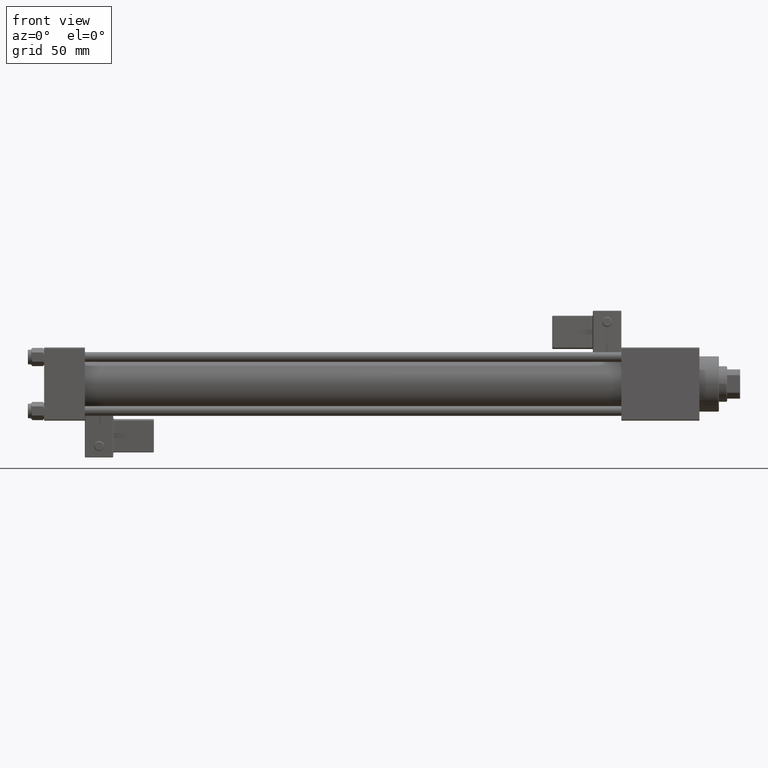
[diagram: clean part render]
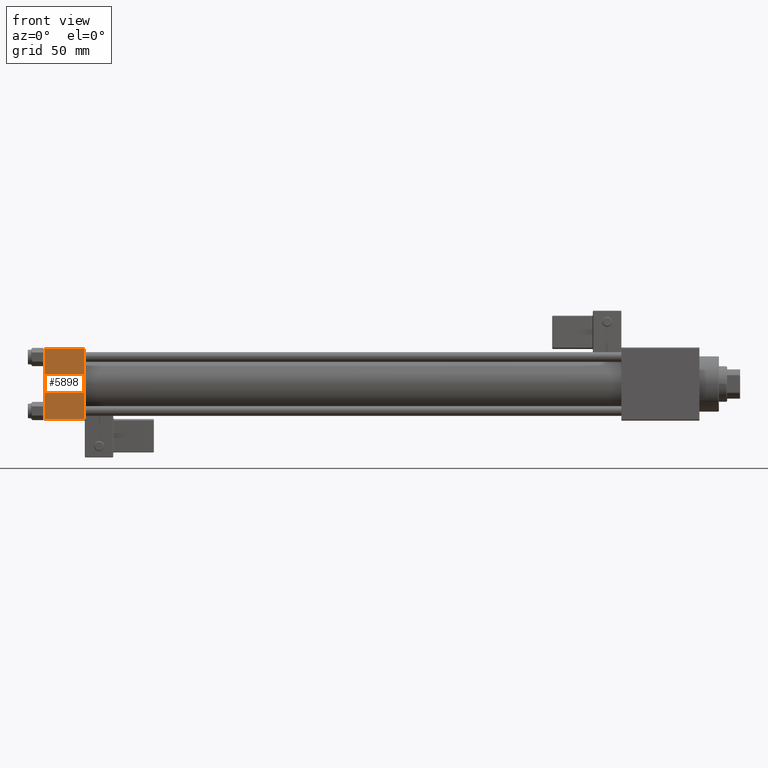
[diagram: same view with one face highlighted and labeled with its STEP entity id]
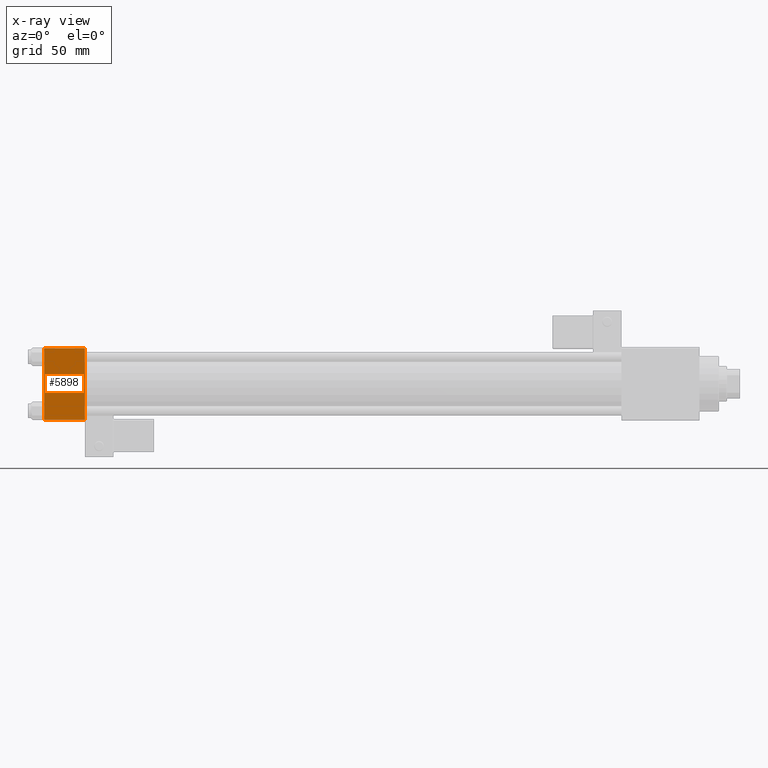
[diagram: x-ray of the same camera — body ghosted, the highlighted face saturated]
A machine part, front view. The second image highlights one B-rep face of the part: STEP entity #5898.
The next image is the same camera in x-ray: the body ghosted, the highlighted face saturated — about 0% of this face is hidden behind the body in this view.
In plain terms, the highlighted planar face has unit normal (0, 1, 0).
Its self-contained STEP definition (entity closure, byte-faithful):
#232 = VECTOR ( 'NONE', #48263, 1000.000000000000000 ) ;
#906 = PLANE ( 'NONE',  #18656 ) ;
#1989 = LINE ( 'NONE', #52530, #33049 ) ;
#2207 = EDGE_CURVE ( 'NONE', #45583, #18763, #19194, .T. ) ;
#2370 = ORIENTED_EDGE ( 'NONE', *, *, #2207, .F. ) ;
#4657 = CARTESIAN_POINT ( 'NONE',  ( 0.000000000000000000, -22.50000000000000000, -21.99999999999997158 ) ) ;
#5898 = ADVANCED_FACE ( 'NONE', ( #29994 ), #906, .F. ) ;
#6273 = DIRECTION ( 'NONE',  ( 0.000000000000000000, -0.000000000000000000, 1.000000000000000000 ) ) ;
#7275 = CARTESIAN_POINT ( 'NONE',  ( 25.00000000000000000, -22.50000000000000000, 22.00000000000000000 ) ) ;
#14884 = CARTESIAN_POINT ( 'NONE',  ( 25.00000000000000000, -22.50000000000000000, -21.99999999999998579 ) ) ;
#15986 = DIRECTION ( 'NONE',  ( -1.000000000000000000, 0.000000000000000000, 0.000000000000000000 ) ) ;
#17223 = DIRECTION ( 'NONE',  ( -0.000000000000000000, 1.000000000000000000, 0.000000000000000000 ) ) ;
#17813 = EDGE_CURVE ( 'NONE', #24950, #18763, #35542, .T. ) ;
#18265 = VECTOR ( 'NONE', #15986, 1000.000000000000000 ) ;
#18656 = AXIS2_PLACEMENT_3D ( 'NONE', #31284, #17223, #6273 ) ;
#18763 = VERTEX_POINT ( 'NONE', #52978 ) ;
#19194 = LINE ( 'NONE', #31681, #232 ) ;
#20252 = ORIENTED_EDGE ( 'NONE', *, *, #17813, .T. ) ;
#21217 = EDGE_CURVE ( 'NONE', #45583, #47704, #40731, .T. ) ;
#24950 = VERTEX_POINT ( 'NONE', #4657 ) ;
#27358 = DIRECTION ( 'NONE',  ( 1.000000000000000000, 0.000000000000000000, 0.000000000000000000 ) ) ;
#29439 = EDGE_LOOP ( 'NONE', ( #49611, #20252, #2370, #31703 ) ) ;
#29994 = FACE_OUTER_BOUND ( 'NONE', #29439, .T. ) ;
#31284 = CARTESIAN_POINT ( 'NONE',  ( 25.00000000000000000, -22.50000000000000000, 22.50000000000000000 ) ) ;
#31374 = CARTESIAN_POINT ( 'NONE',  ( 25.00000000000000000, -22.50000000000000000, 22.00000000000000000 ) ) ;
#31681 = CARTESIAN_POINT ( 'NONE',  ( 25.00000000000000000, -22.50000000000000000, 22.50000000000000000 ) ) ;
#31703 = ORIENTED_EDGE ( 'NONE', *, *, #21217, .T. ) ;
#31880 = DIRECTION ( 'NONE',  ( 0.000000000000000000, 0.000000000000000000, -1.000000000000000000 ) ) ;
#33049 = VECTOR ( 'NONE', #31880, 1000.000000000000000 ) ;
#35542 = LINE ( 'NONE', #14884, #38049 ) ;
#38049 = VECTOR ( 'NONE', #27358, 1000.000000000000000 ) ;
#40731 = LINE ( 'NONE', #7275, #18265 ) ;
#45037 = CARTESIAN_POINT ( 'NONE',  ( 0.000000000000000000, -22.50000000000000000, 22.00000000000000000 ) ) ;
#45583 = VERTEX_POINT ( 'NONE', #31374 ) ;
#47704 = VERTEX_POINT ( 'NONE', #45037 ) ;
#48263 = DIRECTION ( 'NONE',  ( 0.000000000000000000, 0.000000000000000000, -1.000000000000000000 ) ) ;
#49611 = ORIENTED_EDGE ( 'NONE', *, *, #52953, .T. ) ;
#52530 = CARTESIAN_POINT ( 'NONE',  ( 0.000000000000000000, -22.50000000000000000, 22.50000000000000000 ) ) ;
#52953 = EDGE_CURVE ( 'NONE', #47704, #24950, #1989, .T. ) ;
#52978 = CARTESIAN_POINT ( 'NONE',  ( 25.00000000000000000, -22.50000000000000000, -21.99999999999997158 ) ) ;